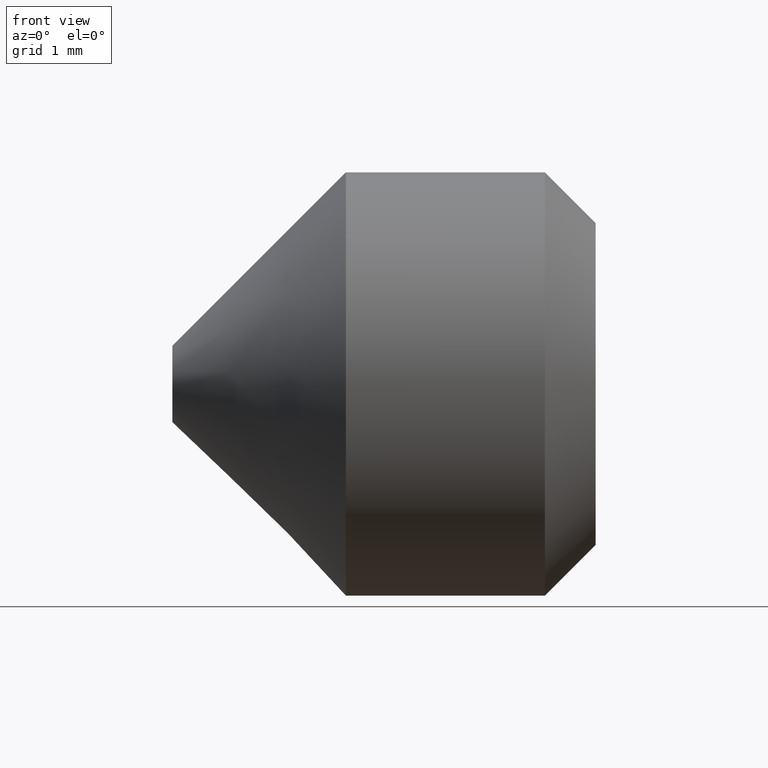
[diagram: clean part render]
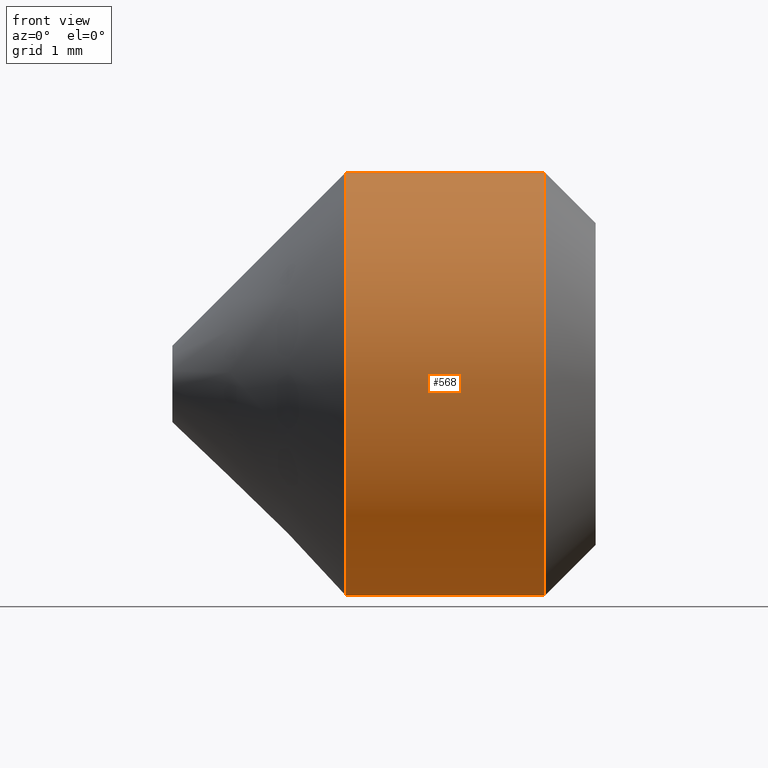
[diagram: same view with one face highlighted and labeled with its STEP entity id]
A machine part, front view. The second image highlights one B-rep face of the part: STEP entity #568.
In plain terms, the highlighted cylindrical surface (bore or boss wall) has radius 2.5 mm, axis along (-1, -0, -0).
Its self-contained STEP definition (entity closure, byte-faithful):
#57 = CYLINDRICAL_SURFACE ( 'NONE', #3391, 2.500000000000000000 ) ;
#295 = EDGE_LOOP ( 'NONE', ( #8822 ) ) ;
#343 = EDGE_CURVE ( 'NONE', #11099, #11099, #8060, .T. ) ;
#568 = ADVANCED_FACE ( 'NONE', ( #3589, #10127 ), #57, .T. ) ;
#1380 = EDGE_LOOP ( 'NONE', ( #1716 ) ) ;
#1716 = ORIENTED_EDGE ( 'NONE', *, *, #343, .T. ) ;
#1737 = DIRECTION ( 'NONE',  ( 0.0000000000000000000, 0.0000000000000000000, 1.000000000000000000 ) ) ;
#2384 = CARTESIAN_POINT ( 'NONE',  ( 4.399999999999997700, 0.0000000000000000000, 0.0000000000000000000 ) ) ;
#2600 = CIRCLE ( 'NONE', #7286, 2.500000000000000000 ) ;
#2996 = AXIS2_PLACEMENT_3D ( 'NONE', #2384, #7834, #5140 ) ;
#3191 = CARTESIAN_POINT ( 'NONE',  ( 2.049999999999976700, 0.0000000000000000000, 2.500000000000000000 ) ) ;
#3391 = AXIS2_PLACEMENT_3D ( 'NONE', #9717, #3599, #4386 ) ;
#3553 = CARTESIAN_POINT ( 'NONE',  ( 2.049999999999976700, 0.0000000000000000000, 0.0000000000000000000 ) ) ;
#3589 = FACE_OUTER_BOUND ( 'NONE', #1380, .T. ) ;
#3599 = DIRECTION ( 'NONE',  ( -1.000000000000000000, -0.0000000000000000000, -0.0000000000000000000 ) ) ;
#4386 = DIRECTION ( 'NONE',  ( 0.0000000000000000000, 0.0000000000000000000, 1.000000000000000000 ) ) ;
#5140 = DIRECTION ( 'NONE',  ( 0.0000000000000000000, 0.0000000000000000000, -1.000000000000000000 ) ) ;
#6223 = DIRECTION ( 'NONE',  ( -1.000000000000000000, -0.0000000000000000000, -0.0000000000000000000 ) ) ;
#6619 = EDGE_CURVE ( 'NONE', #10941, #10941, #2600, .T. ) ;
#7286 = AXIS2_PLACEMENT_3D ( 'NONE', #3553, #6223, #1737 ) ;
#7834 = DIRECTION ( 'NONE',  ( -1.000000000000000000, 0.0000000000000000000, 0.0000000000000000000 ) ) ;
#8060 = CIRCLE ( 'NONE', #2996, 2.500000000000000000 ) ;
#8822 = ORIENTED_EDGE ( 'NONE', *, *, #6619, .F. ) ;
#9717 = CARTESIAN_POINT ( 'NONE',  ( 5.000000000000000000, 0.0000000000000000000, 0.0000000000000000000 ) ) ;
#10127 = FACE_OUTER_BOUND ( 'NONE', #295, .T. ) ;
#10294 = CARTESIAN_POINT ( 'NONE',  ( 4.399999999999997700, 0.0000000000000000000, -2.500000000000000000 ) ) ;
#10941 = VERTEX_POINT ( 'NONE', #3191 ) ;
#11099 = VERTEX_POINT ( 'NONE', #10294 ) ;